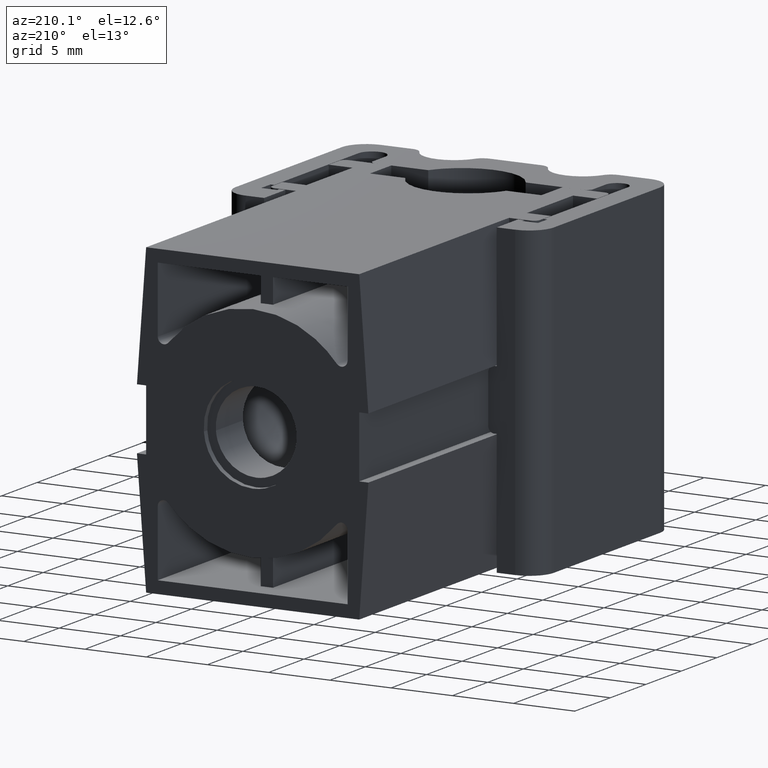
[diagram: clean part render]
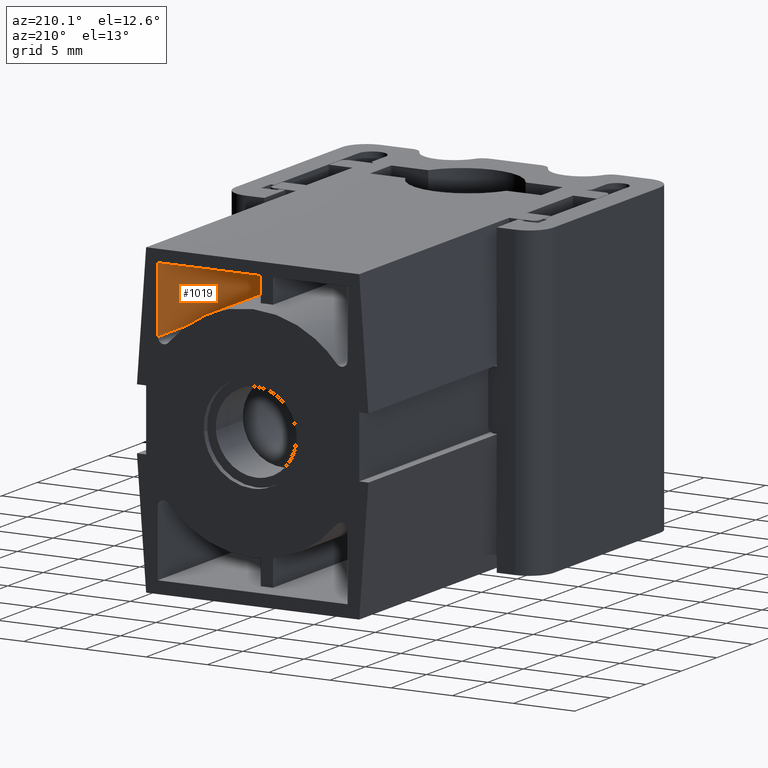
[diagram: same view with one face highlighted and labeled with its STEP entity id]
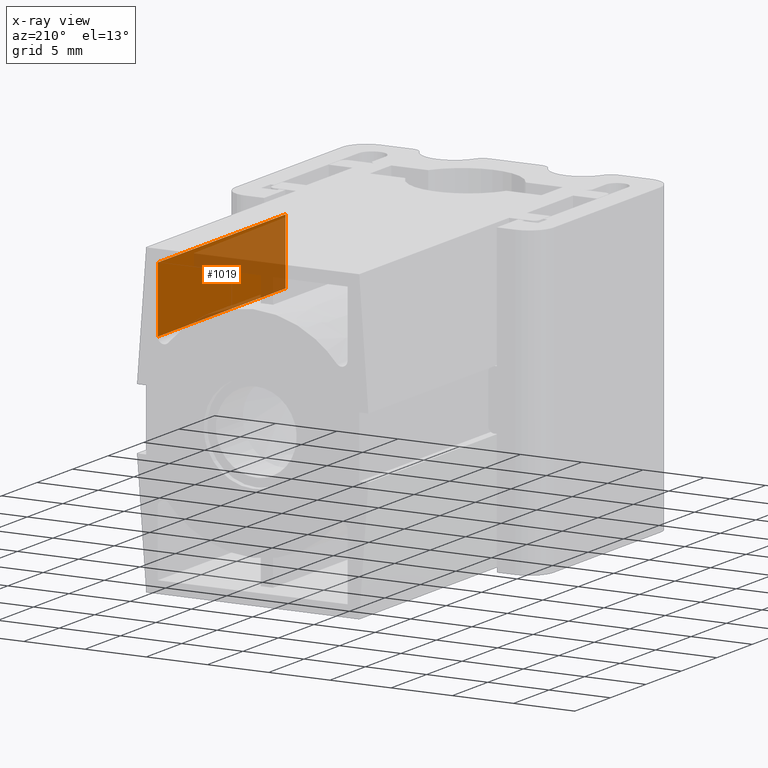
[diagram: x-ray of the same camera — body ghosted, the highlighted face saturated]
A machine part, auxiliary view. The second image highlights one B-rep face of the part: STEP entity #1019.
The next image is the same camera in x-ray: the body ghosted, the highlighted face saturated — about 43% of this face is hidden behind the body in this view.
In plain terms, the highlighted face is a freeform B-spline surface patch.
Its self-contained STEP definition (entity closure, byte-faithful):
#900=CARTESIAN_POINT('',(7.750000368105191,12.000001125689540,11.500000546220701));
#901=VERTEX_POINT('',#900);
#907=CARTESIAN_POINT('',(7.750000368105191,12.000001125689540,6.139014870491490));
#908=VERTEX_POINT('',#907);
#909=CARTESIAN_POINT('',(7.750000368105191,12.000001125689540,11.500000546220701));
#910=CARTESIAN_POINT('',(7.750000368105191,12.000001125689540,6.139014870491490));
#911=QUASI_UNIFORM_CURVE('',1,(#909,#910),.UNSPECIFIED.,.F.,.U.);
#912=EDGE_CURVE('',#901,#908,#911,.T.);
#967=CARTESIAN_POINT('',(7.750000368105191,30.000001125689550,6.139014870491490));
#968=VERTEX_POINT('',#967);
#990=CARTESIAN_POINT('',(7.750000368105191,12.000001125689540,6.139014870491490));
#991=CARTESIAN_POINT('',(7.750000368105191,30.000001125689550,6.139014870491490));
#992=QUASI_UNIFORM_CURVE('',1,(#990,#991),.UNSPECIFIED.,.F.,.U.);
#993=EDGE_CURVE('',#908,#968,#992,.T.);
#998=CARTESIAN_POINT('',(7.750000368105191,11.100900991605910,11.767782223258630));
#999=CARTESIAN_POINT('',(7.750000368105191,11.100900991605910,5.871233481039248));
#1000=CARTESIAN_POINT('',(7.750000368105191,30.899101581638259,11.767782223258630));
#1001=CARTESIAN_POINT('',(7.750000368105191,30.899101581638259,5.871233481039248));
#1002=B_SPLINE_SURFACE_WITH_KNOTS('',1,1,((#998,#1000),(#999,#1001)),.UNSPECIFIED.,.F.,.F.,.U.,(2,2),(2,2),(0.0,5.896548742219379),(0.0,19.798200590032351),.UNSPECIFIED.);
#1003=CARTESIAN_POINT('',(7.750000368105191,30.000001125689550,11.500000546220701));
#1004=VERTEX_POINT('',#1003);
#1005=CARTESIAN_POINT('',(7.750000368105191,30.000001125689550,11.500000546220701));
#1006=CARTESIAN_POINT('',(7.750000368105191,30.000001125689550,6.139014870491490));
#1007=QUASI_UNIFORM_CURVE('',1,(#1005,#1006),.UNSPECIFIED.,.F.,.U.);
#1008=EDGE_CURVE('',#1004,#968,#1007,.T.);
#1009=ORIENTED_EDGE('',*,*,#1008,.T.);
#1010=ORIENTED_EDGE('',*,*,#993,.F.);
#1011=ORIENTED_EDGE('',*,*,#912,.F.);
#1012=CARTESIAN_POINT('',(7.750000368105191,12.000001125689540,11.500000546220701));
#1013=CARTESIAN_POINT('',(7.750000368105191,30.000001125689550,11.500000546220701));
#1014=QUASI_UNIFORM_CURVE('',1,(#1012,#1013),.UNSPECIFIED.,.F.,.U.);
#1015=EDGE_CURVE('',#901,#1004,#1014,.T.);
#1016=ORIENTED_EDGE('',*,*,#1015,.T.);
#1017=EDGE_LOOP('',(#1009,#1010,#1011,#1016));
#1018=FACE_OUTER_BOUND('',#1017,.T.);
#1019=ADVANCED_FACE('',(#1018),#1002,.F.);